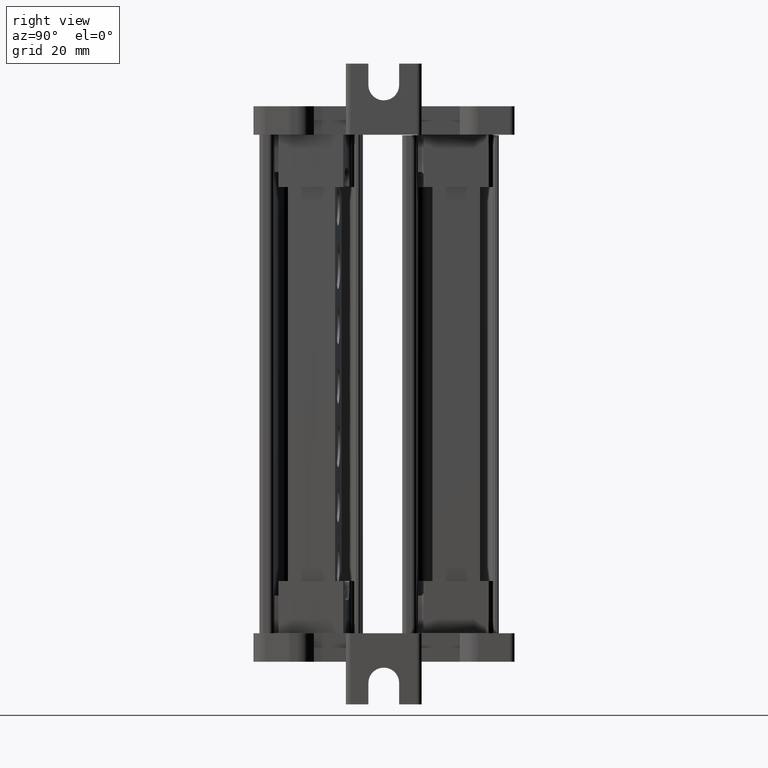
[diagram: clean part render]
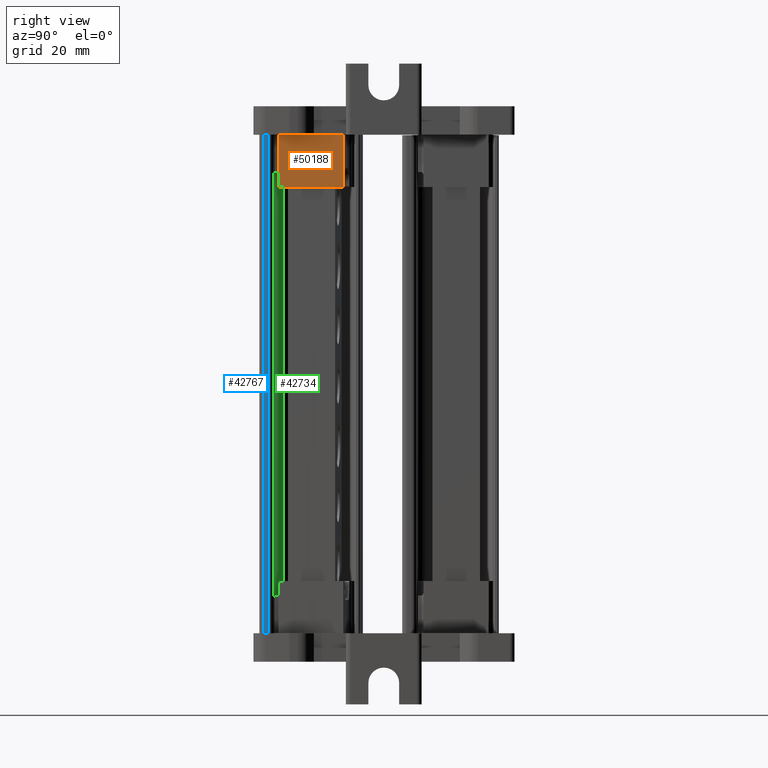
[diagram: same view with three faces highlighted in distinct colors, each labeled with its STEP entity id]
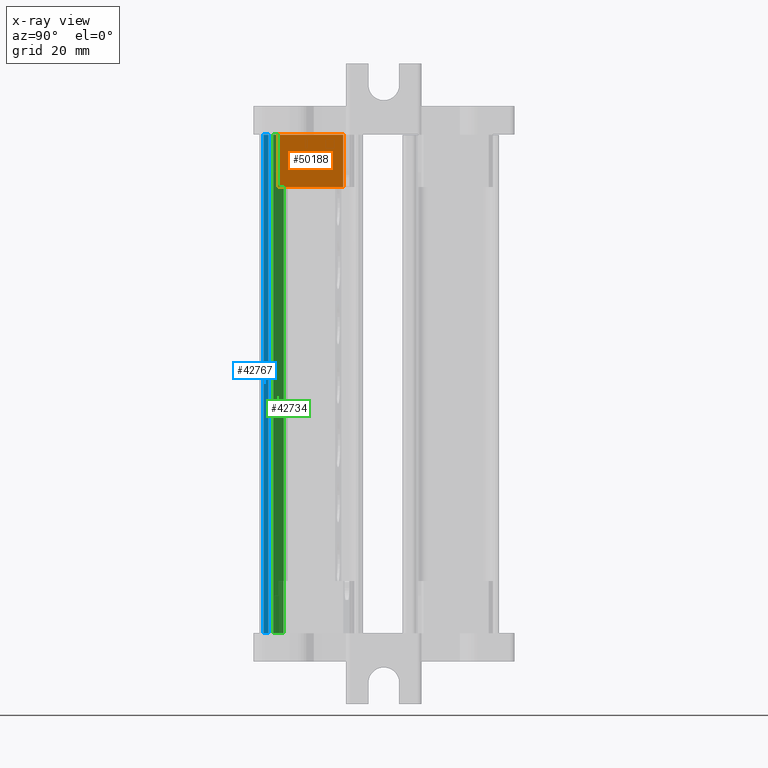
[diagram: x-ray of the same camera — body ghosted, the three highlighted faces saturated]
A machine part, right view with three faces highlighted in distinct colors.
The next image is the same camera in x-ray (body ghosted, the three faces saturated) — at least one of them is partly hidden behind the body in this view.
Their STEP definitions:

[orange] entity #50188 — the highlighted planar face has unit normal (-0.9962, 0.0872, -0).
#389 = CARTESIAN_POINT ( 'NONE',  ( 1909.271027013000100, 775.3384965220950600, 100.0120814190739900 ) ) ;
#401 = CARTESIAN_POINT ( 'NONE',  ( 1908.074784745830100, 761.6653848414998700, 100.0120814190739900 ) ) ;
#555 = CARTESIAN_POINT ( 'NONE',  ( 1908.074784745830100, 761.6653848414998700, 111.0203038005997800 ) ) ;
#572 = CARTESIAN_POINT ( 'NONE',  ( 1909.271011960759800, 775.3384978389940400, 111.0203038005997800 ) ) ;
#7303 = VECTOR ( 'NONE', #8884, 1000.000000000000000 ) ;
#7325 = VECTOR ( 'NONE', #8872, 1000.000000000000000 ) ;
#8856 = CARTESIAN_POINT ( 'NONE',  ( 1908.074784745830100, 761.6653848414998700, 100.0120814190739900 ) ) ;
#8860 = LINE ( 'NONE', #8856, #7325 ) ;
#8872 = DIRECTION ( 'NONE',  ( -8.950083466745379500E-016, -4.465696583239795500E-015, 1.000000000000000000 ) ) ;
#8884 = DIRECTION ( 'NONE',  ( -8.950083466745379500E-016, -4.465696583239795500E-015, 1.000000000000000000 ) ) ;
#8898 = LINE ( 'NONE', #8921, #7303 ) ;
#8921 = CARTESIAN_POINT ( 'NONE',  ( 1909.271027013000100, 775.3384965220950600, 100.0120814190739900 ) ) ;
#17084 = VECTOR ( 'NONE', #18672, 1000.000000000000000 ) ;
#18645 = LINE ( 'NONE', #18684, #17084 ) ;
#18672 = DIRECTION ( 'NONE',  ( 0.08715574274764278900, 0.9961946980917468800, 8.774239420276378300E-016 ) ) ;
#18684 = CARTESIAN_POINT ( 'NONE',  ( 1908.074784745830100, 761.6653848414998700, 100.0120814190739900 ) ) ;
#22024 = VECTOR ( 'NONE', #25737, 1000.000000000000000 ) ;
#25695 = LINE ( 'NONE', #25723, #22024 ) ;
#25723 = CARTESIAN_POINT ( 'NONE',  ( 1908.074784745830100, 761.6653848414998700, 111.0203038006009100 ) ) ;
#25737 = DIRECTION ( 'NONE',  ( 0.08715574274764278900, 0.9961946980917468800, 8.774239420276378300E-016 ) ) ;
#32080 = ORIENTED_EDGE ( 'NONE', *, *, #34692, .F. ) ;
#32089 = ORIENTED_EDGE ( 'NONE', *, *, #36548, .T. ) ;
#32098 = ORIENTED_EDGE ( 'NONE', *, *, #42307, .F. ) ;
#32162 = ORIENTED_EDGE ( 'NONE', *, *, #34702, .T. ) ;
#34692 = EDGE_CURVE ( 'NONE', #56057, #57168, #8860, .T. ) ;
#34702 = EDGE_CURVE ( 'NONE', #56051, #57194, #8898, .T. ) ;
#36548 = EDGE_CURVE ( 'NONE', #56057, #56051, #18645, .T. ) ;
#42307 = EDGE_CURVE ( 'NONE', #57168, #57194, #25695, .T. ) ;
#50188 = ADVANCED_FACE ( 'NONE', ( #67426 ), #67407, .F. ) ;
#50732 = EDGE_LOOP ( 'NONE', ( #32080, #32089, #32162, #32098 ) ) ;
#56051 = VERTEX_POINT ( 'NONE', #389 ) ;
#56057 = VERTEX_POINT ( 'NONE', #401 ) ;
#57168 = VERTEX_POINT ( 'NONE', #555 ) ;
#57194 = VERTEX_POINT ( 'NONE', #572 ) ;
#63455 = AXIS2_PLACEMENT_3D ( 'NONE', #67427, #67409, #67404 ) ;
#67404 = DIRECTION ( 'NONE',  ( -5.769522512706700600E-016, -8.302987775608899300E-016, 1.000000000000000000 ) ) ;
#67407 = PLANE ( 'NONE',  #63455 ) ;
#67409 = DIRECTION ( 'NONE',  ( -0.9961946980917468800, 0.08715574274764278900, -5.023914671071596900E-016 ) ) ;
#67426 = FACE_OUTER_BOUND ( 'NONE', #50732, .T. ) ;
#67427 = CARTESIAN_POINT ( 'NONE',  ( 1908.074784745830100, 761.6653848414998700, 100.0120814190739900 ) ) ;

[blue] entity #42767 — the highlighted planar face has unit normal (-0.9962, 0.0872, 0).
#1582 = CARTESIAN_POINT ( 'NONE',  ( 1903.621314229143500, 759.5597432664510500, 6.000455880789901100 ) ) ;
#1619 = CARTESIAN_POINT ( 'NONE',  ( 1903.621314229142600, 759.5597432664393400, 111.0203038005997800 ) ) ;
#2672 = CARTESIAN_POINT ( 'NONE',  ( 1903.535306256844000, 758.5766528814018600, 6.000455880789679100 ) ) ;
#2724 = CARTESIAN_POINT ( 'NONE',  ( 1903.535306256842200, 758.5766528813784400, 111.0203038005997800 ) ) ;
#21751 = VECTOR ( 'NONE', #24282, 1000.000000000000000 ) ;
#21763 = VECTOR ( 'NONE', #24274, 1000.000000000000000 ) ;
#22813 = VECTOR ( 'NONE', #24784, 1000.000000000000000 ) ;
#24270 = LINE ( 'NONE', #24271, #21763 ) ;
#24271 = CARTESIAN_POINT ( 'NONE',  ( 1903.621314229141700, 759.5597432664277400, 110.6204558807898500 ) ) ;
#24274 = DIRECTION ( 'NONE',  ( 1.899834580507928800E-014, 2.228490473105030800E-013, -1.000000000000000000 ) ) ;
#24282 = DIRECTION ( 'NONE',  ( -0.08715444385914543300, -0.9961948117289123300, 0.0000000000000000000 ) ) ;
#24295 = LINE ( 'NONE', #24300, #21751 ) ;
#24300 = CARTESIAN_POINT ( 'NONE',  ( 1906.465474813208900, 792.0691356979867800, 111.0203038005997800 ) ) ;
#24765 = LINE ( 'NONE', #24766, #22813 ) ;
#24766 = CARTESIAN_POINT ( 'NONE',  ( 1903.535306256842000, 758.5766528813785500, 110.6204558807896200 ) ) ;
#24784 = DIRECTION ( 'NONE',  ( 1.899834580507928800E-014, 2.228490473105030800E-013, -1.000000000000000000 ) ) ;
#26310 = DIRECTION ( 'NONE',  ( 0.08715444385914544700, 0.9961948117289123300, 2.236452676363279300E-013 ) ) ;
#26322 = LINE ( 'NONE', #26351, #28205 ) ;
#26351 = CARTESIAN_POINT ( 'NONE',  ( 1906.465474813210900, 792.0691356980100900, 6.000455880797214400 ) ) ;
#27442 = AXIS2_PLACEMENT_3D ( 'NONE', #29225, #29211, #29193 ) ;
#28205 = VECTOR ( 'NONE', #26310, 1000.000000000000000 ) ;
#29192 = PLANE ( 'NONE',  #27442 ) ;
#29193 = DIRECTION ( 'NONE',  ( -0.08715444385914543300, -0.9961948117289123300, -2.275100487316737100E-013 ) ) ;
#29201 = FACE_OUTER_BOUND ( 'NONE', #40006, .T. ) ;
#29211 = DIRECTION ( 'NONE',  ( -0.9961948117289123300, 0.08715444385914543300, 4.962312604355375500E-016 ) ) ;
#29225 = CARTESIAN_POINT ( 'NONE',  ( 1906.465474813208900, 792.0691356979867800, 110.6204558807972100 ) ) ;
#40006 = EDGE_LOOP ( 'NONE', ( #51472, #51569, #51473, #51491 ) ) ;
#41916 = EDGE_CURVE ( 'NONE', #58339, #58377, #24765, .T. ) ;
#42046 = EDGE_CURVE ( 'NONE', #58885, #58339, #24295, .T. ) ;
#42047 = EDGE_CURVE ( 'NONE', #58885, #58852, #24270, .T. ) ;
#42441 = EDGE_CURVE ( 'NONE', #58377, #58852, #26322, .T. ) ;
#42767 = ADVANCED_FACE ( 'NONE', ( #29201 ), #29192, .F. ) ;
#51472 = ORIENTED_EDGE ( 'NONE', *, *, #42047, .F. ) ;
#51473 = ORIENTED_EDGE ( 'NONE', *, *, #41916, .T. ) ;
#51491 = ORIENTED_EDGE ( 'NONE', *, *, #42441, .T. ) ;
#51569 = ORIENTED_EDGE ( 'NONE', *, *, #42046, .T. ) ;
#58339 = VERTEX_POINT ( 'NONE', #2724 ) ;
#58377 = VERTEX_POINT ( 'NONE', #2672 ) ;
#58852 = VERTEX_POINT ( 'NONE', #1582 ) ;
#58885 = VERTEX_POINT ( 'NONE', #1619 ) ;

[green] entity #42734 — the highlighted planar face has unit normal (-0.1045, -0.9945, -0).
#1508 = CARTESIAN_POINT ( 'NONE',  ( 1902.729647333735800, 760.6414203600231800, 6.000455880790123200 ) ) ;
#1553 = CARTESIAN_POINT ( 'NONE',  ( 1882.653009094779200, 762.7515476725180900, 6.000455880790206600 ) ) ;
#1633 = CARTESIAN_POINT ( 'NONE',  ( 1882.653009094777000, 762.7515476724948900, 111.0203038005997800 ) ) ;
#1667 = CARTESIAN_POINT ( 'NONE',  ( 1902.729647333735800, 760.6414203599994200, 111.0203038005997800 ) ) ;
#21755 = VECTOR ( 'NONE', #24284, 1000.000000000000000 ) ;
#22901 = VECTOR ( 'NONE', #24242, 1000.000000000000000 ) ;
#22908 = VECTOR ( 'NONE', #24265, 1000.000000000000000 ) ;
#24213 = CARTESIAN_POINT ( 'NONE',  ( 1882.653009094777200, 762.7515476724947800, 110.6204558807900500 ) ) ;
#24224 = LINE ( 'NONE', #24213, #22901 ) ;
#24241 = LINE ( 'NONE', #24283, #22908 ) ;
#24242 = DIRECTION ( 'NONE',  ( 1.899834580507928800E-014, 2.228490473105030800E-013, -1.000000000000000000 ) ) ;
#24264 = LINE ( 'NONE', #24273, #21755 ) ;
#24265 = DIRECTION ( 'NONE',  ( 1.899834580507928800E-014, 2.228490473105030800E-013, -1.000000000000000000 ) ) ;
#24273 = CARTESIAN_POINT ( 'NONE',  ( 1890.971438261912200, 761.8772506724836800, 111.0203038005997800 ) ) ;
#24283 = CARTESIAN_POINT ( 'NONE',  ( 1902.729647333733700, 760.6414203599998700, 110.6204558807902000 ) ) ;
#24284 = DIRECTION ( 'NONE',  ( 0.9945219592039804500, -0.1045278559096866900, 0.0000000000000000000 ) ) ;
#26207 = CARTESIAN_POINT ( 'NONE',  ( 1890.971438261914300, 761.8772506725071000, 6.000455880790192400 ) ) ;
#26241 = LINE ( 'NONE', #26207, #28178 ) ;
#26255 = DIRECTION ( 'NONE',  ( -0.9945219592039804500, 0.1045278559096866900, 4.433591255882277900E-015 ) ) ;
#27405 = AXIS2_PLACEMENT_3D ( 'NONE', #28939, #28961, #28976 ) ;
#28178 = VECTOR ( 'NONE', #26255, 1000.000000000000000 ) ;
#28899 = FACE_OUTER_BOUND ( 'NONE', #40035, .T. ) ;
#28935 = PLANE ( 'NONE',  #27405 ) ;
#28939 = CARTESIAN_POINT ( 'NONE',  ( 1890.971438261912200, 761.8772506724838000, 110.6204558807901500 ) ) ;
#28961 = DIRECTION ( 'NONE',  ( -0.1045278559096867200, -0.9945219592039804500, -2.236141274930544100E-013 ) ) ;
#28976 = DIRECTION ( 'NONE',  ( 0.9945219592039804500, -0.1045278559096867200, -3.517428196427361700E-015 ) ) ;
#40035 = EDGE_LOOP ( 'NONE', ( #51504, #51460, #51455, #51513 ) ) ;
#42038 = EDGE_CURVE ( 'NONE', #58965, #58790, #24224, .T. ) ;
#42040 = EDGE_CURVE ( 'NONE', #58919, #58823, #24241, .T. ) ;
#42050 = EDGE_CURVE ( 'NONE', #58965, #58919, #24264, .T. ) ;
#42426 = EDGE_CURVE ( 'NONE', #58823, #58790, #26241, .T. ) ;
#42734 = ADVANCED_FACE ( 'NONE', ( #28899 ), #28935, .F. ) ;
#51455 = ORIENTED_EDGE ( 'NONE', *, *, #42040, .T. ) ;
#51460 = ORIENTED_EDGE ( 'NONE', *, *, #42050, .T. ) ;
#51504 = ORIENTED_EDGE ( 'NONE', *, *, #42038, .F. ) ;
#51513 = ORIENTED_EDGE ( 'NONE', *, *, #42426, .T. ) ;
#58790 = VERTEX_POINT ( 'NONE', #1553 ) ;
#58823 = VERTEX_POINT ( 'NONE', #1508 ) ;
#58919 = VERTEX_POINT ( 'NONE', #1667 ) ;
#58965 = VERTEX_POINT ( 'NONE', #1633 ) ;